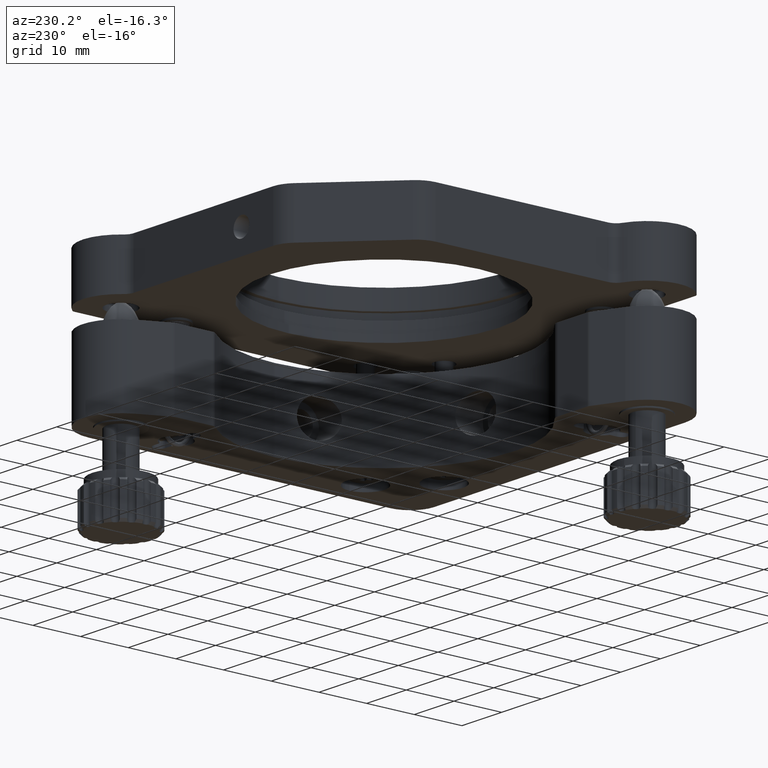
[diagram: clean part render]
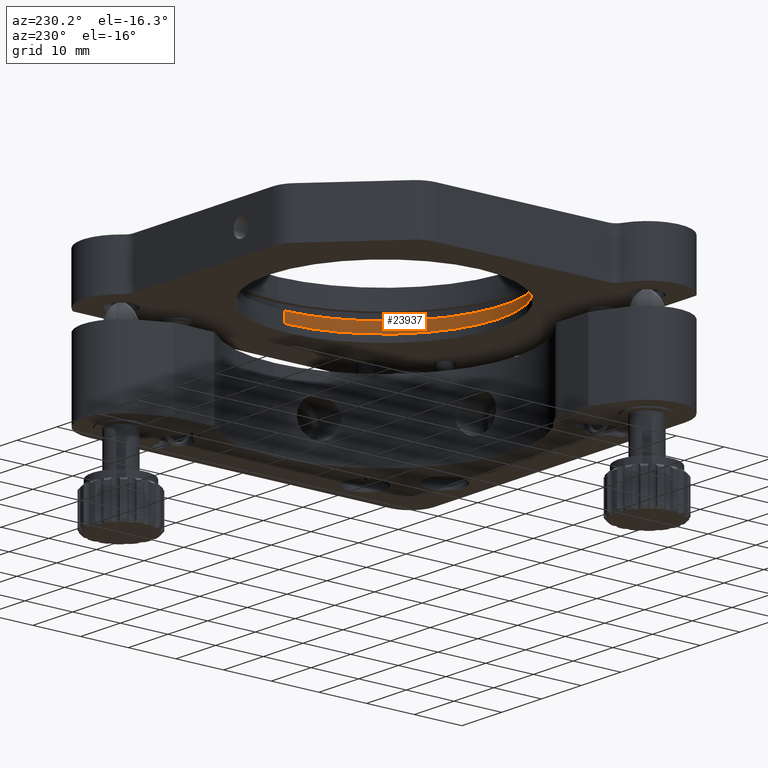
[diagram: same view with one face highlighted and labeled with its STEP entity id]
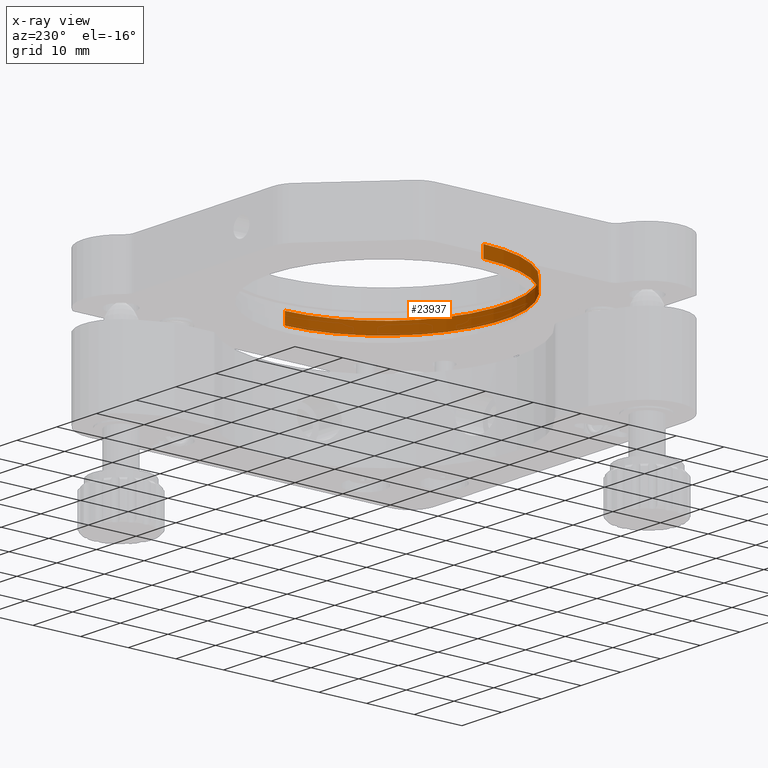
[diagram: x-ray of the same camera — body ghosted, the highlighted face saturated]
A machine part, auxiliary view. The second image highlights one B-rep face of the part: STEP entity #23937.
The next image is the same camera in x-ray: the body ghosted, the highlighted face saturated — about 1% of this face is hidden behind the body in this view.
In plain terms, the highlighted cylindrical surface (partial cylindrical patch) has radius 25 mm, axis along (-0, -0, 1).
Its self-contained STEP definition (entity closure, byte-faithful):
#742 = CIRCLE ( 'NONE', #15937, 25.00000000000000000 ) ;
#873 = DIRECTION ( 'NONE',  ( 0.0000000000000000000, 0.0000000000000000000, 1.000000000000000000 ) ) ;
#1139 = VERTEX_POINT ( 'NONE', #6621 ) ;
#1202 = DIRECTION ( 'NONE',  ( 0.0000000000000000000, 0.0000000000000000000, 1.000000000000000000 ) ) ;
#1320 = CARTESIAN_POINT ( 'NONE',  ( -15.26030118957226400, 19.05503669957007400, 47.90000000000001300 ) ) ;
#1435 = DIRECTION ( 'NONE',  ( 1.000000000000000000, 0.0000000000000000000, 0.0000000000000000000 ) ) ;
#1958 = LINE ( 'NONE', #2831, #22434 ) ;
#2364 = LINE ( 'NONE', #18031, #15660 ) ;
#2831 = CARTESIAN_POINT ( 'NONE',  ( 9.739698810427736200, 19.05503669957007400, 47.90000000000001300 ) ) ;
#2847 = AXIS2_PLACEMENT_3D ( 'NONE', #17124, #1202, #19850 ) ;
#3386 = ORIENTED_EDGE ( 'NONE', *, *, #7620, .T. ) ;
#4378 = CIRCLE ( 'NONE', #2847, 25.00000000000000000 ) ;
#5245 = VERTEX_POINT ( 'NONE', #15200 ) ;
#5395 = VERTEX_POINT ( 'NONE', #9710 ) ;
#5685 = FACE_OUTER_BOUND ( 'NONE', #18935, .T. ) ;
#6621 = CARTESIAN_POINT ( 'NONE',  ( 9.739698810427736200, 19.05503669957007400, 50.40000000000001300 ) ) ;
#7620 = EDGE_CURVE ( 'NONE', #5245, #12425, #2364, .T. ) ;
#9710 = CARTESIAN_POINT ( 'NONE',  ( 9.739698810427736200, 19.05503669957007400, 47.90000000000001300 ) ) ;
#12425 = VERTEX_POINT ( 'NONE', #29065 ) ;
#13309 = ORIENTED_EDGE ( 'NONE', *, *, #18500, .F. ) ;
#15200 = CARTESIAN_POINT ( 'NONE',  ( -40.26030118957226700, 19.05503669957007800, 47.90000000000001300 ) ) ;
#15660 = VECTOR ( 'NONE', #18147, 1000.000000000000000 ) ;
#15937 = AXIS2_PLACEMENT_3D ( 'NONE', #16773, #873, #19479 ) ;
#16773 = CARTESIAN_POINT ( 'NONE',  ( -15.26030118957226400, 19.05503669957007400, 50.40000000000001300 ) ) ;
#17124 = CARTESIAN_POINT ( 'NONE',  ( -15.26030118957226400, 19.05503669957007400, 47.90000000000001300 ) ) ;
#17676 = ORIENTED_EDGE ( 'NONE', *, *, #19953, .F. ) ;
#18031 = CARTESIAN_POINT ( 'NONE',  ( -40.26030118957226700, 19.05503669957007800, 47.90000000000001300 ) ) ;
#18147 = DIRECTION ( 'NONE',  ( -0.0000000000000000000, -0.0000000000000000000, 1.000000000000000000 ) ) ;
#18500 = EDGE_CURVE ( 'NONE', #5245, #5395, #4378, .T. ) ;
#18778 = DIRECTION ( 'NONE',  ( -0.0000000000000000000, -0.0000000000000000000, 1.000000000000000000 ) ) ;
#18935 = EDGE_LOOP ( 'NONE', ( #13309, #3386, #33330, #17676 ) ) ;
#19479 = DIRECTION ( 'NONE',  ( 1.000000000000000000, 0.0000000000000000000, 0.0000000000000000000 ) ) ;
#19850 = DIRECTION ( 'NONE',  ( 1.000000000000000000, 0.0000000000000000000, 0.0000000000000000000 ) ) ;
#19953 = EDGE_CURVE ( 'NONE', #5395, #1139, #1958, .T. ) ;
#22434 = VECTOR ( 'NONE', #18778, 1000.000000000000000 ) ;
#22701 = DIRECTION ( 'NONE',  ( -0.0000000000000000000, -0.0000000000000000000, 1.000000000000000000 ) ) ;
#23937 = ADVANCED_FACE ( 'NONE', ( #5685 ), #30776, .F. ) ;
#26599 = AXIS2_PLACEMENT_3D ( 'NONE', #1320, #22701, #1435 ) ;
#29065 = CARTESIAN_POINT ( 'NONE',  ( -40.26030118957226700, 19.05503669957007800, 50.40000000000001300 ) ) ;
#30776 = CYLINDRICAL_SURFACE ( 'NONE', #26599, 25.00000000000000000 ) ;
#33330 = ORIENTED_EDGE ( 'NONE', *, *, #34462, .T. ) ;
#34462 = EDGE_CURVE ( 'NONE', #12425, #1139, #742, .T. ) ;